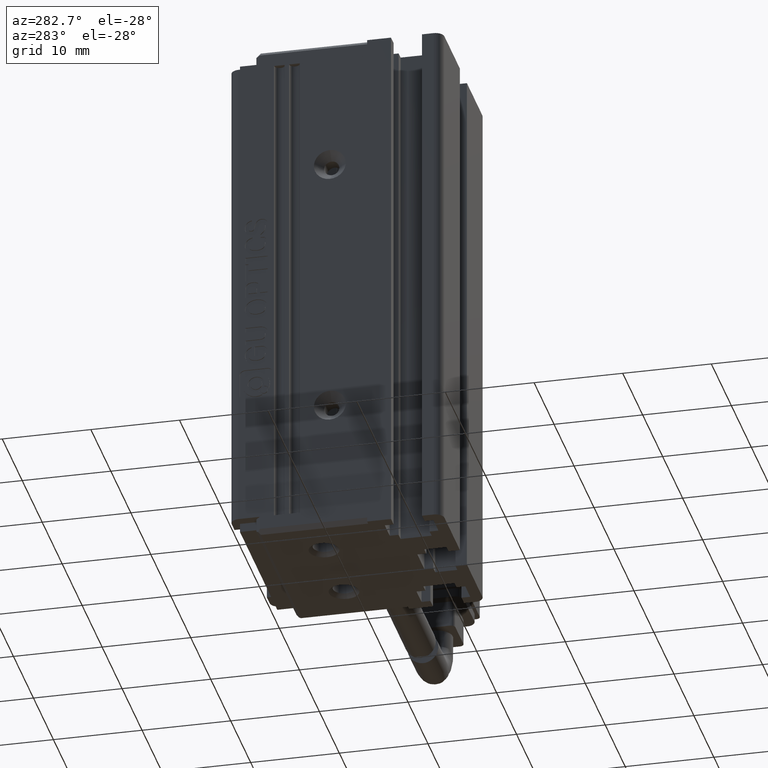
[diagram: clean part render]
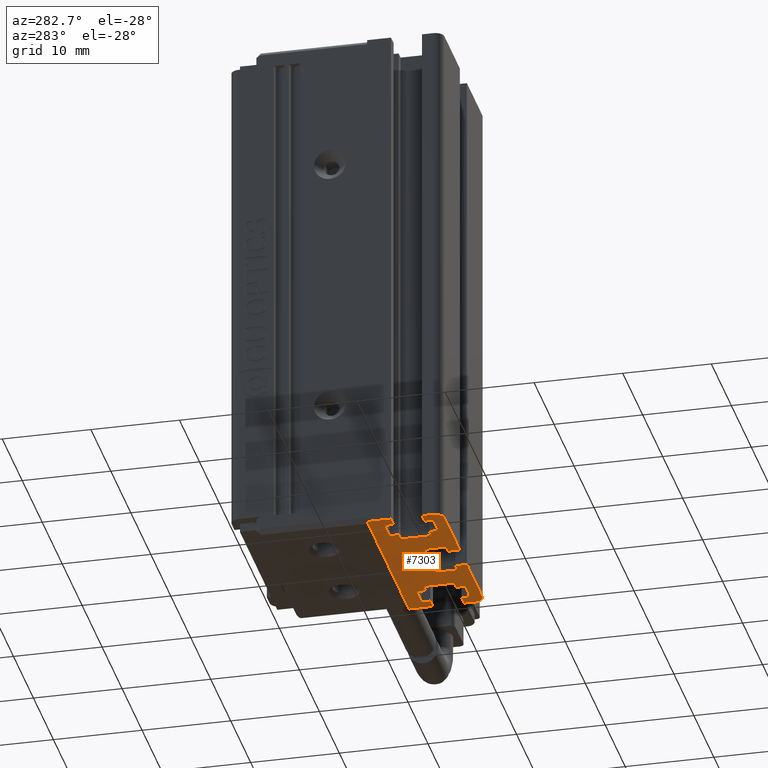
[diagram: same view with one face highlighted and labeled with its STEP entity id]
A machine part, auxiliary view. The second image highlights one B-rep face of the part: STEP entity #7303.
In plain terms, the highlighted planar face has unit normal (-0, 0, 1).
Its self-contained STEP definition (entity closure, byte-faithful):
#5 = CARTESIAN_POINT ( 'NONE',  ( 28.67537974683542900, 8.383797468354437400, -145.0000000000000300 ) ) ;
#55 = VERTEX_POINT ( 'NONE', #16352 ) ;
#267 = CARTESIAN_POINT ( 'NONE',  ( 40.92537974683542500, 8.083797468354440200, -145.0000000000000300 ) ) ;
#287 = CARTESIAN_POINT ( 'NONE',  ( 23.72537974683542900, 13.88379746835443700, -145.0000000000000300 ) ) ;
#421 = CARTESIAN_POINT ( 'NONE',  ( 40.92537974683542500, 8.383797468354437400, -145.0000000000000300 ) ) ;
#449 = CARTESIAN_POINT ( 'NONE',  ( 37.12537974683539200, 7.083797468354450900, -145.0000000000000300 ) ) ;
#450 = CARTESIAN_POINT ( 'NONE',  ( 40.92537974683542500, 7.083797468354437600, -145.0000000000000300 ) ) ;
#716 = LINE ( 'NONE', #12172, #22345 ) ;
#851 = ORIENTED_EDGE ( 'NONE', *, *, #20456, .F. ) ;
#881 = ORIENTED_EDGE ( 'NONE', *, *, #19744, .F. ) ;
#1025 = DIRECTION ( 'NONE',  ( -3.469446951953625600E-015, 1.000000000000000000, 0.0000000000000000000 ) ) ;
#1033 = VECTOR ( 'NONE', #1871, 1000.000000000000000 ) ;
#1049 = VECTOR ( 'NONE', #18452, 1000.000000000000000 ) ;
#1157 = ORIENTED_EDGE ( 'NONE', *, *, #26282, .T. ) ;
#1472 = LINE ( 'NONE', #24887, #5934 ) ;
#1574 = VERTEX_POINT ( 'NONE', #19896 ) ;
#1587 = DIRECTION ( 'NONE',  ( -0.0000000000000000000, 0.0000000000000000000, 1.000000000000000000 ) ) ;
#1713 = EDGE_CURVE ( 'NONE', #24870, #9433, #1472, .T. ) ;
#1752 = VERTEX_POINT ( 'NONE', #15658 ) ;
#1871 = DIRECTION ( 'NONE',  ( 1.000000000000000000, 0.0000000000000000000, 0.0000000000000000000 ) ) ;
#1891 = VERTEX_POINT ( 'NONE', #3212 ) ;
#2196 = LINE ( 'NONE', #449, #5640 ) ;
#2209 = ORIENTED_EDGE ( 'NONE', *, *, #12662, .F. ) ;
#2248 = VECTOR ( 'NONE', #18757, 1000.000000000000000 ) ;
#2277 = LINE ( 'NONE', #10922, #15651 ) ;
#2526 = VERTEX_POINT ( 'NONE', #10383 ) ;
#2528 = VECTOR ( 'NONE', #19668, 1000.000000000000000 ) ;
#2743 = DIRECTION ( 'NONE',  ( -1.000000000000000000, -0.0000000000000000000, 0.0000000000000000000 ) ) ;
#2776 = VECTOR ( 'NONE', #3427, 1000.000000000000000 ) ;
#2921 = ORIENTED_EDGE ( 'NONE', *, *, #8226, .T. ) ;
#3195 = CARTESIAN_POINT ( 'NONE',  ( 32.17537974683542500, 7.083797468354436700, -145.0000000000000300 ) ) ;
#3212 = CARTESIAN_POINT ( 'NONE',  ( 33.17537974683542500, 8.383797468354437400, -145.0000000000000300 ) ) ;
#3413 = EDGE_CURVE ( 'NONE', #15685, #17232, #27437, .T. ) ;
#3427 = DIRECTION ( 'NONE',  ( -0.0000000000000000000, -1.000000000000000000, 0.0000000000000000000 ) ) ;
#3564 = EDGE_LOOP ( 'NONE', ( #12220, #14093, #14381, #28471, #13056, #27688, #22613, #12515, #6544, #21586, #16713, #25910, #20361, #851, #9918, #6935, #23150, #7997, #23590, #14639, #22925, #1157, #8601, #23983, #8526, #2209, #7016, #8055, #9637, #19343, #28205, #20796, #12010, #21627, #881, #2921, #13124, #23610, #24268, #21332, #23216, #28183 ) ) ;
#3592 = CARTESIAN_POINT ( 'NONE',  ( 40.92537974683543200, 9.383797468354405400, -145.0000000000000300 ) ) ;
#3604 = CARTESIAN_POINT ( 'NONE',  ( 40.92537974683542500, 12.88379746835443700, -145.0000000000000300 ) ) ;
#3652 = EDGE_CURVE ( 'NONE', #9021, #4912, #9169, .T. ) ;
#3819 = DIRECTION ( 'NONE',  ( -0.0000000000000000000, -1.000000000000000000, 0.0000000000000000000 ) ) ;
#4160 = CARTESIAN_POINT ( 'NONE',  ( 37.12537974683542100, 13.88379746835443600, -145.0000000000000300 ) ) ;
#4218 = DIRECTION ( 'NONE',  ( 1.000000000000000000, 1.221636250687892000E-016, 0.0000000000000000000 ) ) ;
#4275 = CARTESIAN_POINT ( 'NONE',  ( 20.92537974683542500, 8.083797468354434900, -145.0000000000000300 ) ) ;
#4428 = LINE ( 'NONE', #5871, #13354 ) ;
#4560 = EDGE_CURVE ( 'NONE', #1891, #22917, #19683, .T. ) ;
#4718 = DIRECTION ( 'NONE',  ( 1.000000000000000000, 2.168404344971006900E-015, 0.0000000000000000000 ) ) ;
#4798 = EDGE_CURVE ( 'NONE', #6275, #22917, #24481, .T. ) ;
#4801 = VERTEX_POINT ( 'NONE', #27353 ) ;
#4811 = CARTESIAN_POINT ( 'NONE',  ( 40.92537974683541800, 9.383797468354474700, -145.0000000000000300 ) ) ;
#4828 = LINE ( 'NONE', #19059, #2776 ) ;
#4896 = VECTOR ( 'NONE', #26469, 1000.000000000000000 ) ;
#4912 = VERTEX_POINT ( 'NONE', #25201 ) ;
#4921 = LINE ( 'NONE', #10535, #6316 ) ;
#5029 = DIRECTION ( 'NONE',  ( 1.000000000000000000, 0.0000000000000000000, 0.0000000000000000000 ) ) ;
#5061 = EDGE_CURVE ( 'NONE', #28140, #15107, #20635, .T. ) ;
#5077 = VERTEX_POINT ( 'NONE', #26594 ) ;
#5146 = CARTESIAN_POINT ( 'NONE',  ( 40.92537974683542500, 7.083797468354436700, -145.0000000000000300 ) ) ;
#5149 = CARTESIAN_POINT ( 'NONE',  ( 39.92537974683542500, 8.083797468354438500, -145.0000000000000300 ) ) ;
#5192 = VECTOR ( 'NONE', #22241, 1000.000000000000000 ) ;
#5249 = VERTEX_POINT ( 'NONE', #21002 ) ;
#5402 = VECTOR ( 'NONE', #4718, 1000.000000000000000 ) ;
#5432 = EDGE_CURVE ( 'NONE', #17232, #14908, #26882, .T. ) ;
#5640 = VECTOR ( 'NONE', #22426, 1000.000000000000000 ) ;
#5779 = EDGE_CURVE ( 'NONE', #15066, #11911, #16847, .T. ) ;
#5783 = VERTEX_POINT ( 'NONE', #5803 ) ;
#5803 = CARTESIAN_POINT ( 'NONE',  ( 40.92537974683542500, 15.58379746835443800, -145.0000000000000300 ) ) ;
#5871 = CARTESIAN_POINT ( 'NONE',  ( 40.92537974683542500, 9.383797468354441000, -145.0000000000000300 ) ) ;
#5890 = EDGE_CURVE ( 'NONE', #21180, #17556, #16822, .T. ) ;
#5899 = VECTOR ( 'NONE', #10165, 1000.000000000000000 ) ;
#5934 = VECTOR ( 'NONE', #7345, 1000.000000000000000 ) ;
#6071 = FACE_OUTER_BOUND ( 'NONE', #3564, .T. ) ;
#6201 = VERTEX_POINT ( 'NONE', #26820 ) ;
#6275 = VERTEX_POINT ( 'NONE', #3195 ) ;
#6316 = VECTOR ( 'NONE', #23971, 1000.000000000000000 ) ;
#6321 = VECTOR ( 'NONE', #19741, 1000.000000000000000 ) ;
#6434 = EDGE_CURVE ( 'NONE', #28140, #2526, #4428, .T. ) ;
#6544 = ORIENTED_EDGE ( 'NONE', *, *, #21842, .F. ) ;
#6640 = LINE ( 'NONE', #25846, #15185 ) ;
#6773 = LINE ( 'NONE', #3604, #15998 ) ;
#6873 = EDGE_CURVE ( 'NONE', #20885, #8936, #10544, .T. ) ;
#6935 = ORIENTED_EDGE ( 'NONE', *, *, #4798, .T. ) ;
#6986 = VECTOR ( 'NONE', #16167, 1000.000000000000000 ) ;
#7016 = ORIENTED_EDGE ( 'NONE', *, *, #12590, .F. ) ;
#7072 = CARTESIAN_POINT ( 'NONE',  ( 40.92537974683542500, 10.88379746835443600, -145.0000000000000300 ) ) ;
#7173 = EDGE_CURVE ( 'NONE', #1574, #1752, #21536, .T. ) ;
#7303 = ADVANCED_FACE ( 'NONE', ( #6071 ), #7937, .F. ) ;
#7342 = VECTOR ( 'NONE', #26276, 1000.000000000000000 ) ;
#7345 = DIRECTION ( 'NONE',  ( 1.000000000000000000, 0.0000000000000000000, 0.0000000000000000000 ) ) ;
#7426 = CARTESIAN_POINT ( 'NONE',  ( 39.62537974683541400, 7.083797468354437600, -145.0000000000000300 ) ) ;
#7542 = VERTEX_POINT ( 'NONE', #26403 ) ;
#7564 = CARTESIAN_POINT ( 'NONE',  ( 32.17537974683542500, 7.083797468354414500, -145.0000000000000300 ) ) ;
#7699 = EDGE_CURVE ( 'NONE', #9433, #21180, #2196, .T. ) ;
#7937 = PLANE ( 'NONE',  #8556 ) ;
#7997 = ORIENTED_EDGE ( 'NONE', *, *, #12055, .F. ) ;
#8003 = LINE ( 'NONE', #27798, #24802 ) ;
#8055 = ORIENTED_EDGE ( 'NONE', *, *, #23486, .F. ) ;
#8120 = DIRECTION ( 'NONE',  ( 1.000000000000000000, -1.668003342285392400E-015, 0.0000000000000000000 ) ) ;
#8187 = CARTESIAN_POINT ( 'NONE',  ( 32.17537974683542500, 8.383797468354437400, -145.0000000000000300 ) ) ;
#8210 = LINE ( 'NONE', #18164, #22237 ) ;
#8226 = EDGE_CURVE ( 'NONE', #23693, #20885, #8210, .T. ) ;
#8324 = EDGE_CURVE ( 'NONE', #4801, #5077, #18474, .T. ) ;
#8526 = ORIENTED_EDGE ( 'NONE', *, *, #9325, .T. ) ;
#8556 = AXIS2_PLACEMENT_3D ( 'NONE', #25771, #1587, #10409 ) ;
#8601 = ORIENTED_EDGE ( 'NONE', *, *, #8324, .T. ) ;
#8618 = LINE ( 'NONE', #10994, #16115 ) ;
#8629 = DIRECTION ( 'NONE',  ( -0.0000000000000000000, -1.000000000000000000, 0.0000000000000000000 ) ) ;
#8718 = DIRECTION ( 'NONE',  ( -0.0000000000000000000, -1.000000000000000000, 0.0000000000000000000 ) ) ;
#8721 = CARTESIAN_POINT ( 'NONE',  ( 24.72537974683543300, 7.083797468354437600, -145.0000000000000300 ) ) ;
#8798 = EDGE_CURVE ( 'NONE', #12640, #25559, #17043, .T. ) ;
#8936 = VERTEX_POINT ( 'NONE', #287 ) ;
#9021 = VERTEX_POINT ( 'NONE', #20332 ) ;
#9119 = CARTESIAN_POINT ( 'NONE',  ( 23.72537974683543300, 8.383797468354437400, -145.0000000000000300 ) ) ;
#9162 = VERTEX_POINT ( 'NONE', #23326 ) ;
#9169 = LINE ( 'NONE', #12320, #25991 ) ;
#9325 = EDGE_CURVE ( 'NONE', #19636, #21296, #27704, .T. ) ;
#9433 = VERTEX_POINT ( 'NONE', #13515 ) ;
#9571 = CARTESIAN_POINT ( 'NONE',  ( 40.92537974683543200, 9.383797468354441000, -145.0000000000000300 ) ) ;
#9637 = ORIENTED_EDGE ( 'NONE', *, *, #12986, .F. ) ;
#9668 = CARTESIAN_POINT ( 'NONE',  ( 40.92537974683542500, 12.88379746835443600, -145.0000000000000300 ) ) ;
#9794 = CARTESIAN_POINT ( 'NONE',  ( 23.72537974683543300, 9.383797468354437400, -145.0000000000000300 ) ) ;
#9858 = CARTESIAN_POINT ( 'NONE',  ( 28.67537974683542900, 11.88379746835443700, -145.0000000000000300 ) ) ;
#9918 = ORIENTED_EDGE ( 'NONE', *, *, #16962, .F. ) ;
#10157 = LINE ( 'NONE', #23157, #2248 ) ;
#10165 = DIRECTION ( 'NONE',  ( 1.334402673828313200E-015, 1.000000000000000000, 0.0000000000000000000 ) ) ;
#10257 = CARTESIAN_POINT ( 'NONE',  ( 19.92537974683542500, 7.083797468354437600, -145.0000000000000300 ) ) ;
#10383 = CARTESIAN_POINT ( 'NONE',  ( 39.62537974683541400, 9.383797468354439200, -145.0000000000000300 ) ) ;
#10409 = DIRECTION ( 'NONE',  ( 1.000000000000000000, 0.0000000000000000000, 0.0000000000000000000 ) ) ;
#10535 = CARTESIAN_POINT ( 'NONE',  ( 27.67537974683542500, 7.083797468354437600, -145.0000000000000300 ) ) ;
#10544 = LINE ( 'NONE', #25117, #18778 ) ;
#10632 = VECTOR ( 'NONE', #17058, 1000.000000000000000 ) ;
#10737 = LINE ( 'NONE', #8721, #4896 ) ;
#10921 = DIRECTION ( 'NONE',  ( -1.000000000000000000, -6.672013369141516900E-016, 0.0000000000000000000 ) ) ;
#10922 = CARTESIAN_POINT ( 'NONE',  ( 37.12537974683542100, 7.083797468354425100, -145.0000000000000300 ) ) ;
#10978 = CARTESIAN_POINT ( 'NONE',  ( 24.72537974683543300, 12.88379746835443700, -145.0000000000000300 ) ) ;
#10994 = CARTESIAN_POINT ( 'NONE',  ( 19.92537974683542500, 7.083797468354437600, -145.0000000000000300 ) ) ;
#11031 = CARTESIAN_POINT ( 'NONE',  ( 36.12537974683540700, 12.88379746835443600, -145.0000000000000300 ) ) ;
#11072 = DIRECTION ( 'NONE',  ( 3.469446951953615000E-015, 1.000000000000000000, 0.0000000000000000000 ) ) ;
#11085 = EDGE_CURVE ( 'NONE', #14908, #18974, #27396, .T. ) ;
#11175 = CARTESIAN_POINT ( 'NONE',  ( 40.92537974683542500, 9.383797468354439200, -145.0000000000000300 ) ) ;
#11408 = VECTOR ( 'NONE', #17774, 1000.000000000000000 ) ;
#11432 = LINE ( 'NONE', #17215, #7342 ) ;
#11451 = DIRECTION ( 'NONE',  ( -1.000000000000000000, -4.336808689941969400E-016, 0.0000000000000000000 ) ) ;
#11746 = CARTESIAN_POINT ( 'NONE',  ( 36.12537974683540700, 9.383797468354437400, -145.0000000000000300 ) ) ;
#11837 = CARTESIAN_POINT ( 'NONE',  ( 21.22537974683542900, 7.083797468354369200, -145.0000000000000300 ) ) ;
#11911 = VERTEX_POINT ( 'NONE', #26730 ) ;
#12010 = ORIENTED_EDGE ( 'NONE', *, *, #22438, .T. ) ;
#12055 = EDGE_CURVE ( 'NONE', #18974, #1891, #8003, .T. ) ;
#12172 = CARTESIAN_POINT ( 'NONE',  ( 40.92537974683542500, 7.083797468354435800, -145.0000000000000300 ) ) ;
#12220 = ORIENTED_EDGE ( 'NONE', *, *, #19149, .T. ) ;
#12289 = VECTOR ( 'NONE', #5029, 1000.000000000000000 ) ;
#12320 = CARTESIAN_POINT ( 'NONE',  ( 40.92537974683542500, 8.383797468354441000, -145.0000000000000300 ) ) ;
#12515 = ORIENTED_EDGE ( 'NONE', *, *, #20794, .F. ) ;
#12590 = EDGE_CURVE ( 'NONE', #7542, #19740, #716, .T. ) ;
#12640 = VERTEX_POINT ( 'NONE', #9794 ) ;
#12653 = VECTOR ( 'NONE', #2743, 1000.000000000000000 ) ;
#12662 = EDGE_CURVE ( 'NONE', #19740, #21296, #20638, .T. ) ;
#12986 = EDGE_CURVE ( 'NONE', #15066, #16607, #8618, .T. ) ;
#13056 = ORIENTED_EDGE ( 'NONE', *, *, #7699, .F. ) ;
#13108 = CARTESIAN_POINT ( 'NONE',  ( 32.17537974683542500, 7.083797468354437600, -145.0000000000000300 ) ) ;
#13124 = ORIENTED_EDGE ( 'NONE', *, *, #6873, .T. ) ;
#13354 = VECTOR ( 'NONE', #10921, 1000.000000000000000 ) ;
#13515 = CARTESIAN_POINT ( 'NONE',  ( 37.12537974683541400, 12.88379746835443600, -145.0000000000000300 ) ) ;
#13536 = LINE ( 'NONE', #22192, #14894 ) ;
#13879 = EDGE_CURVE ( 'NONE', #14497, #24870, #18528, .T. ) ;
#14093 = ORIENTED_EDGE ( 'NONE', *, *, #7173, .F. ) ;
#14381 = ORIENTED_EDGE ( 'NONE', *, *, #19659, .T. ) ;
#14497 = VERTEX_POINT ( 'NONE', #11746 ) ;
#14606 = DIRECTION ( 'NONE',  ( -1.000000000000000000, -0.0000000000000000000, -0.0000000000000000000 ) ) ;
#14639 = ORIENTED_EDGE ( 'NONE', *, *, #5432, .F. ) ;
#14804 = VECTOR ( 'NONE', #20461, 1000.000000000000000 ) ;
#14894 = VECTOR ( 'NONE', #11072, 1000.000000000000000 ) ;
#14908 = VERTEX_POINT ( 'NONE', #21355 ) ;
#14929 = CARTESIAN_POINT ( 'NONE',  ( 28.67537974683542900, 7.083797468354436700, -145.0000000000000300 ) ) ;
#15004 = CARTESIAN_POINT ( 'NONE',  ( 32.17537974683542500, 11.88379746835443700, -145.0000000000000300 ) ) ;
#15066 = VERTEX_POINT ( 'NONE', #17908 ) ;
#15100 = DIRECTION ( 'NONE',  ( -1.000000000000000000, 0.0000000000000000000, 0.0000000000000000000 ) ) ;
#15107 = VERTEX_POINT ( 'NONE', #267 ) ;
#15185 = VECTOR ( 'NONE', #4218, 1000.000000000000000 ) ;
#15315 = CARTESIAN_POINT ( 'NONE',  ( 39.62537974683541400, 13.88379746835443600, -145.0000000000000300 ) ) ;
#15598 = CARTESIAN_POINT ( 'NONE',  ( 39.92537974683542500, 7.083797468354437600, -145.0000000000000300 ) ) ;
#15651 = VECTOR ( 'NONE', #26400, 1000.000000000000000 ) ;
#15658 = CARTESIAN_POINT ( 'NONE',  ( 40.92537974683542500, 12.88379746835443400, -145.0000000000000300 ) ) ;
#15666 = VECTOR ( 'NONE', #22884, 1000.000000000000000 ) ;
#15685 = VERTEX_POINT ( 'NONE', #9858 ) ;
#15736 = VECTOR ( 'NONE', #11451, 1000.000000000000000 ) ;
#15998 = VECTOR ( 'NONE', #19604, 1000.000000000000000 ) ;
#16115 = VECTOR ( 'NONE', #8629, 1000.000000000000000 ) ;
#16167 = DIRECTION ( 'NONE',  ( -2.668805347656626500E-015, 1.000000000000000000, 0.0000000000000000000 ) ) ;
#16352 = CARTESIAN_POINT ( 'NONE',  ( 19.92537974683542500, 15.58379746835443700, -145.0000000000000300 ) ) ;
#16607 = VERTEX_POINT ( 'NONE', #23208 ) ;
#16713 = ORIENTED_EDGE ( 'NONE', *, *, #18748, .F. ) ;
#16758 = CARTESIAN_POINT ( 'NONE',  ( 40.92537974683542500, 10.88379746835444100, -145.0000000000000300 ) ) ;
#16811 = VERTEX_POINT ( 'NONE', #9119 ) ;
#16822 = LINE ( 'NONE', #19592, #1033 ) ;
#16847 = LINE ( 'NONE', #3592, #21335 ) ;
#16874 = CARTESIAN_POINT ( 'NONE',  ( 21.22537974683542600, 13.88379746835443700, -145.0000000000000300 ) ) ;
#16962 = EDGE_CURVE ( 'NONE', #6275, #21970, #24697, .T. ) ;
#17043 = LINE ( 'NONE', #4811, #5402 ) ;
#17058 = DIRECTION ( 'NONE',  ( 0.0000000000000000000, 1.000000000000000000, -0.0000000000000000000 ) ) ;
#17160 = CIRCLE ( 'NONE', #27697, 1.000000000000000900 ) ;
#17206 = DIRECTION ( 'NONE',  ( 0.0000000000000000000, 0.0000000000000000000, 1.000000000000000000 ) ) ;
#17215 = CARTESIAN_POINT ( 'NONE',  ( 39.62537974683541400, 7.083797468354437600, -145.0000000000000300 ) ) ;
#17232 = VERTEX_POINT ( 'NONE', #15004 ) ;
#17248 = CARTESIAN_POINT ( 'NONE',  ( 33.17537974683542500, 10.88379746835443700, -145.0000000000000300 ) ) ;
#17556 = VERTEX_POINT ( 'NONE', #15315 ) ;
#17614 = CARTESIAN_POINT ( 'NONE',  ( 40.92537974683542500, 8.383797468354437400, -145.0000000000000300 ) ) ;
#17774 = DIRECTION ( 'NONE',  ( -1.000000000000000000, -0.0000000000000000000, -0.0000000000000000000 ) ) ;
#17908 = CARTESIAN_POINT ( 'NONE',  ( 19.92537974683542500, 9.383797468354439200, -145.0000000000000300 ) ) ;
#18089 = DIRECTION ( 'NONE',  ( 0.0000000000000000000, 0.0000000000000000000, 1.000000000000000000 ) ) ;
#18164 = CARTESIAN_POINT ( 'NONE',  ( 40.92537974683543900, 12.88379746835439700, -145.0000000000000300 ) ) ;
#18429 = VECTOR ( 'NONE', #22923, 1000.000000000000000 ) ;
#18452 = DIRECTION ( 'NONE',  ( -3.469446951953625600E-015, -1.000000000000000000, 0.0000000000000000000 ) ) ;
#18474 = LINE ( 'NONE', #7072, #12653 ) ;
#18528 = LINE ( 'NONE', #28349, #10632 ) ;
#18748 = EDGE_CURVE ( 'NONE', #2526, #9021, #26609, .T. ) ;
#18757 = DIRECTION ( 'NONE',  ( 1.000000000000000000, 0.0000000000000000000, 0.0000000000000000000 ) ) ;
#18778 = VECTOR ( 'NONE', #1025, 1000.000000000000000 ) ;
#18962 = VECTOR ( 'NONE', #8718, 1000.000000000000000 ) ;
#18965 = EDGE_CURVE ( 'NONE', #55, #5783, #6640, .T. ) ;
#18974 = VERTEX_POINT ( 'NONE', #17248 ) ;
#19059 = CARTESIAN_POINT ( 'NONE',  ( 28.67537974683542900, 7.083797468354437600, -145.0000000000000300 ) ) ;
#19149 = EDGE_CURVE ( 'NONE', #5783, #1752, #21728, .T. ) ;
#19250 = LINE ( 'NONE', #22575, #1049 ) ;
#19343 = ORIENTED_EDGE ( 'NONE', *, *, #5779, .T. ) ;
#19534 = EDGE_CURVE ( 'NONE', #55, #27633, #26527, .T. ) ;
#19563 = CARTESIAN_POINT ( 'NONE',  ( 40.92537974683543200, 7.083797468354437600, -145.0000000000000300 ) ) ;
#19592 = CARTESIAN_POINT ( 'NONE',  ( 40.92537974683542500, 13.88379746835443600, -145.0000000000000300 ) ) ;
#19604 = DIRECTION ( 'NONE',  ( 1.000000000000000000, 0.0000000000000000000, 0.0000000000000000000 ) ) ;
#19636 = VERTEX_POINT ( 'NONE', #25505 ) ;
#19659 = EDGE_CURVE ( 'NONE', #1574, #17556, #11432, .T. ) ;
#19668 = DIRECTION ( 'NONE',  ( 5.687617954022316600E-016, -1.000000000000000000, 0.0000000000000000000 ) ) ;
#19674 = EDGE_CURVE ( 'NONE', #19636, #5077, #4921, .T. ) ;
#19683 = LINE ( 'NONE', #17614, #6321 ) ;
#19740 = VERTEX_POINT ( 'NONE', #14929 ) ;
#19741 = DIRECTION ( 'NONE',  ( -1.000000000000000000, -0.0000000000000000000, 0.0000000000000000000 ) ) ;
#19744 = EDGE_CURVE ( 'NONE', #23693, #25559, #10737, .T. ) ;
#19828 = EDGE_CURVE ( 'NONE', #16811, #9162, #25875, .T. ) ;
#19896 = CARTESIAN_POINT ( 'NONE',  ( 39.62537974683541400, 12.88379746835443400, -145.0000000000000300 ) ) ;
#19900 = VECTOR ( 'NONE', #24722, 1000.000000000000000 ) ;
#20332 = CARTESIAN_POINT ( 'NONE',  ( 39.62537974683541400, 8.383797468354441000, -145.0000000000000300 ) ) ;
#20361 = ORIENTED_EDGE ( 'NONE', *, *, #5061, .T. ) ;
#20456 = EDGE_CURVE ( 'NONE', #21970, #15107, #17160, .T. ) ;
#20461 = DIRECTION ( 'NONE',  ( 3.469446951953615000E-015, -1.000000000000000000, 0.0000000000000000000 ) ) ;
#20635 = LINE ( 'NONE', #450, #5192 ) ;
#20638 = LINE ( 'NONE', #23015, #5899 ) ;
#20794 = EDGE_CURVE ( 'NONE', #5249, #14497, #20909, .T. ) ;
#20796 = ORIENTED_EDGE ( 'NONE', *, *, #19828, .F. ) ;
#20885 = VERTEX_POINT ( 'NONE', #22582 ) ;
#20908 = DIRECTION ( 'NONE',  ( 1.000000000000000000, 0.0000000000000000000, 0.0000000000000000000 ) ) ;
#20909 = LINE ( 'NONE', #11175, #15736 ) ;
#21002 = CARTESIAN_POINT ( 'NONE',  ( 37.12537974683541400, 9.383797468354437400, -145.0000000000000300 ) ) ;
#21180 = VERTEX_POINT ( 'NONE', #4160 ) ;
#21296 = VERTEX_POINT ( 'NONE', #5 ) ;
#21332 = ORIENTED_EDGE ( 'NONE', *, *, #28370, .F. ) ;
#21335 = VECTOR ( 'NONE', #8120, 1000.000000000000000 ) ;
#21355 = CARTESIAN_POINT ( 'NONE',  ( 32.17537974683542500, 10.88379746835443700, -145.0000000000000300 ) ) ;
#21536 = LINE ( 'NONE', #9668, #15666 ) ;
#21586 = ORIENTED_EDGE ( 'NONE', *, *, #3652, .F. ) ;
#21627 = ORIENTED_EDGE ( 'NONE', *, *, #8798, .T. ) ;
#21728 = LINE ( 'NONE', #19563, #2528 ) ;
#21805 = VECTOR ( 'NONE', #28526, 1000.000000000000000 ) ;
#21842 = EDGE_CURVE ( 'NONE', #4912, #5249, #2277, .T. ) ;
#21970 = VERTEX_POINT ( 'NONE', #15598 ) ;
#22016 = LINE ( 'NONE', #11837, #14804 ) ;
#22192 = CARTESIAN_POINT ( 'NONE',  ( 23.72537974683542600, 7.083797468354498000, -145.0000000000000300 ) ) ;
#22237 = VECTOR ( 'NONE', #26845, 1000.000000000000000 ) ;
#22241 = DIRECTION ( 'NONE',  ( -1.508455196501570000E-015, -1.000000000000000000, 0.0000000000000000000 ) ) ;
#22345 = VECTOR ( 'NONE', #20908, 1000.000000000000000 ) ;
#22426 = DIRECTION ( 'NONE',  ( 3.469446951953617300E-015, 1.000000000000000000, 0.0000000000000000000 ) ) ;
#22438 = EDGE_CURVE ( 'NONE', #16811, #12640, #13536, .T. ) ;
#22548 = EDGE_CURVE ( 'NONE', #11911, #9162, #22016, .T. ) ;
#22575 = CARTESIAN_POINT ( 'NONE',  ( 21.22537974683540100, 7.083797468354506000, -145.0000000000000300 ) ) ;
#22582 = CARTESIAN_POINT ( 'NONE',  ( 23.72537974683543300, 12.88379746835444100, -145.0000000000000300 ) ) ;
#22586 = EDGE_CURVE ( 'NONE', #26614, #6201, #19250, .T. ) ;
#22613 = ORIENTED_EDGE ( 'NONE', *, *, #13879, .F. ) ;
#22750 = DIRECTION ( 'NONE',  ( -0.0000000000000000000, -1.000000000000000000, 0.0000000000000000000 ) ) ;
#22884 = DIRECTION ( 'NONE',  ( 1.000000000000000000, 0.0000000000000000000, 0.0000000000000000000 ) ) ;
#22917 = VERTEX_POINT ( 'NONE', #8187 ) ;
#22923 = DIRECTION ( 'NONE',  ( 1.000000000000000000, 4.336808689942021700E-016, 0.0000000000000000000 ) ) ;
#22925 = ORIENTED_EDGE ( 'NONE', *, *, #3413, .F. ) ;
#23015 = CARTESIAN_POINT ( 'NONE',  ( 28.67537974683542900, 7.083797468354454500, -145.0000000000000300 ) ) ;
#23150 = ORIENTED_EDGE ( 'NONE', *, *, #4560, .F. ) ;
#23157 = CARTESIAN_POINT ( 'NONE',  ( 40.92537974683542500, 13.88379746835443700, -145.0000000000000300 ) ) ;
#23208 = CARTESIAN_POINT ( 'NONE',  ( 19.92537974683542500, 8.083797468354434900, -145.0000000000000300 ) ) ;
#23216 = ORIENTED_EDGE ( 'NONE', *, *, #19534, .F. ) ;
#23326 = CARTESIAN_POINT ( 'NONE',  ( 21.22537974683542600, 8.383797468354437400, -145.0000000000000300 ) ) ;
#23486 = EDGE_CURVE ( 'NONE', #16607, #7542, #23627, .T. ) ;
#23590 = ORIENTED_EDGE ( 'NONE', *, *, #11085, .F. ) ;
#23610 = ORIENTED_EDGE ( 'NONE', *, *, #24048, .F. ) ;
#23627 = CIRCLE ( 'NONE', #28191, 1.000000000000000900 ) ;
#23693 = VERTEX_POINT ( 'NONE', #10978 ) ;
#23971 = DIRECTION ( 'NONE',  ( 0.0000000000000000000, 1.000000000000000000, -0.0000000000000000000 ) ) ;
#23983 = ORIENTED_EDGE ( 'NONE', *, *, #19674, .F. ) ;
#24048 = EDGE_CURVE ( 'NONE', #26614, #8936, #10157, .T. ) ;
#24268 = ORIENTED_EDGE ( 'NONE', *, *, #22586, .T. ) ;
#24481 = LINE ( 'NONE', #7564, #6986 ) ;
#24604 = CARTESIAN_POINT ( 'NONE',  ( 40.92537974683542500, 11.88379746835443700, -145.0000000000000300 ) ) ;
#24697 = LINE ( 'NONE', #5146, #19900 ) ;
#24722 = DIRECTION ( 'NONE',  ( 1.000000000000000000, 0.0000000000000000000, 0.0000000000000000000 ) ) ;
#24802 = VECTOR ( 'NONE', #27978, 1000.000000000000000 ) ;
#24870 = VERTEX_POINT ( 'NONE', #11031 ) ;
#24887 = CARTESIAN_POINT ( 'NONE',  ( 40.92537974683542500, 12.88379746835443600, -145.0000000000000300 ) ) ;
#24943 = CARTESIAN_POINT ( 'NONE',  ( 19.92537974683542500, 12.88379746835443700, -145.0000000000000300 ) ) ;
#25117 = CARTESIAN_POINT ( 'NONE',  ( 23.72537974683545400, 7.083797468354378100, -145.0000000000000300 ) ) ;
#25201 = CARTESIAN_POINT ( 'NONE',  ( 37.12537974683542100, 8.383797468354439200, -145.0000000000000300 ) ) ;
#25205 = VECTOR ( 'NONE', #22750, 1000.000000000000000 ) ;
#25505 = CARTESIAN_POINT ( 'NONE',  ( 27.67537974683542500, 8.383797468354437400, -145.0000000000000300 ) ) ;
#25559 = VERTEX_POINT ( 'NONE', #26351 ) ;
#25771 = CARTESIAN_POINT ( 'NONE',  ( 40.92537974683542500, 7.083797468354437600, -145.0000000000000300 ) ) ;
#25826 = VECTOR ( 'NONE', #3819, 1000.000000000000000 ) ;
#25846 = CARTESIAN_POINT ( 'NONE',  ( 40.92537974683542500, 15.58379746835443800, -145.0000000000000300 ) ) ;
#25875 = LINE ( 'NONE', #421, #11408 ) ;
#25910 = ORIENTED_EDGE ( 'NONE', *, *, #6434, .F. ) ;
#25991 = VECTOR ( 'NONE', #14606, 1000.000000000000000 ) ;
#26276 = DIRECTION ( 'NONE',  ( 0.0000000000000000000, 1.000000000000000000, 0.0000000000000000000 ) ) ;
#26282 = EDGE_CURVE ( 'NONE', #15685, #4801, #4828, .T. ) ;
#26351 = CARTESIAN_POINT ( 'NONE',  ( 24.72537974683543300, 9.383797468354439200, -145.0000000000000300 ) ) ;
#26400 = DIRECTION ( 'NONE',  ( -3.469446951953617300E-015, 1.000000000000000000, 0.0000000000000000000 ) ) ;
#26403 = CARTESIAN_POINT ( 'NONE',  ( 20.92537974683542500, 7.083797468354435800, -145.0000000000000300 ) ) ;
#26469 = DIRECTION ( 'NONE',  ( -0.0000000000000000000, -1.000000000000000000, 0.0000000000000000000 ) ) ;
#26527 = LINE ( 'NONE', #10257, #25826 ) ;
#26594 = CARTESIAN_POINT ( 'NONE',  ( 27.67537974683542500, 10.88379746835443600, -145.0000000000000300 ) ) ;
#26609 = LINE ( 'NONE', #7426, #25205 ) ;
#26614 = VERTEX_POINT ( 'NONE', #16874 ) ;
#26730 = CARTESIAN_POINT ( 'NONE',  ( 21.22537974683542200, 9.383797468354437400, -145.0000000000000300 ) ) ;
#26820 = CARTESIAN_POINT ( 'NONE',  ( 21.22537974683542200, 12.88379746835444100, -145.0000000000000300 ) ) ;
#26845 = DIRECTION ( 'NONE',  ( -1.000000000000000000, 2.602085213965208300E-015, 0.0000000000000000000 ) ) ;
#26882 = LINE ( 'NONE', #13108, #18962 ) ;
#26959 = DIRECTION ( 'NONE',  ( -1.000000000000000000, 0.0000000000000000000, 0.0000000000000000000 ) ) ;
#27353 = CARTESIAN_POINT ( 'NONE',  ( 28.67537974683542900, 10.88379746835443600, -145.0000000000000300 ) ) ;
#27396 = LINE ( 'NONE', #16758, #18429 ) ;
#27437 = LINE ( 'NONE', #24604, #12289 ) ;
#27633 = VERTEX_POINT ( 'NONE', #24943 ) ;
#27688 = ORIENTED_EDGE ( 'NONE', *, *, #1713, .F. ) ;
#27697 = AXIS2_PLACEMENT_3D ( 'NONE', #5149, #18089, #26959 ) ;
#27704 = LINE ( 'NONE', #28331, #21805 ) ;
#27798 = CARTESIAN_POINT ( 'NONE',  ( 33.17537974683542500, 7.083797468354437600, -145.0000000000000300 ) ) ;
#27978 = DIRECTION ( 'NONE',  ( -0.0000000000000000000, -1.000000000000000000, 0.0000000000000000000 ) ) ;
#28140 = VERTEX_POINT ( 'NONE', #9571 ) ;
#28183 = ORIENTED_EDGE ( 'NONE', *, *, #18965, .T. ) ;
#28191 = AXIS2_PLACEMENT_3D ( 'NONE', #4275, #17206, #15100 ) ;
#28205 = ORIENTED_EDGE ( 'NONE', *, *, #22548, .T. ) ;
#28331 = CARTESIAN_POINT ( 'NONE',  ( 40.92537974683542500, 8.383797468354441000, -145.0000000000000300 ) ) ;
#28349 = CARTESIAN_POINT ( 'NONE',  ( 36.12537974683540700, 7.083797468354437600, -145.0000000000000300 ) ) ;
#28370 = EDGE_CURVE ( 'NONE', #27633, #6201, #6773, .T. ) ;
#28471 = ORIENTED_EDGE ( 'NONE', *, *, #5890, .F. ) ;
#28526 = DIRECTION ( 'NONE',  ( 1.000000000000000000, 2.168404344971006600E-016, 0.0000000000000000000 ) ) ;